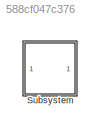
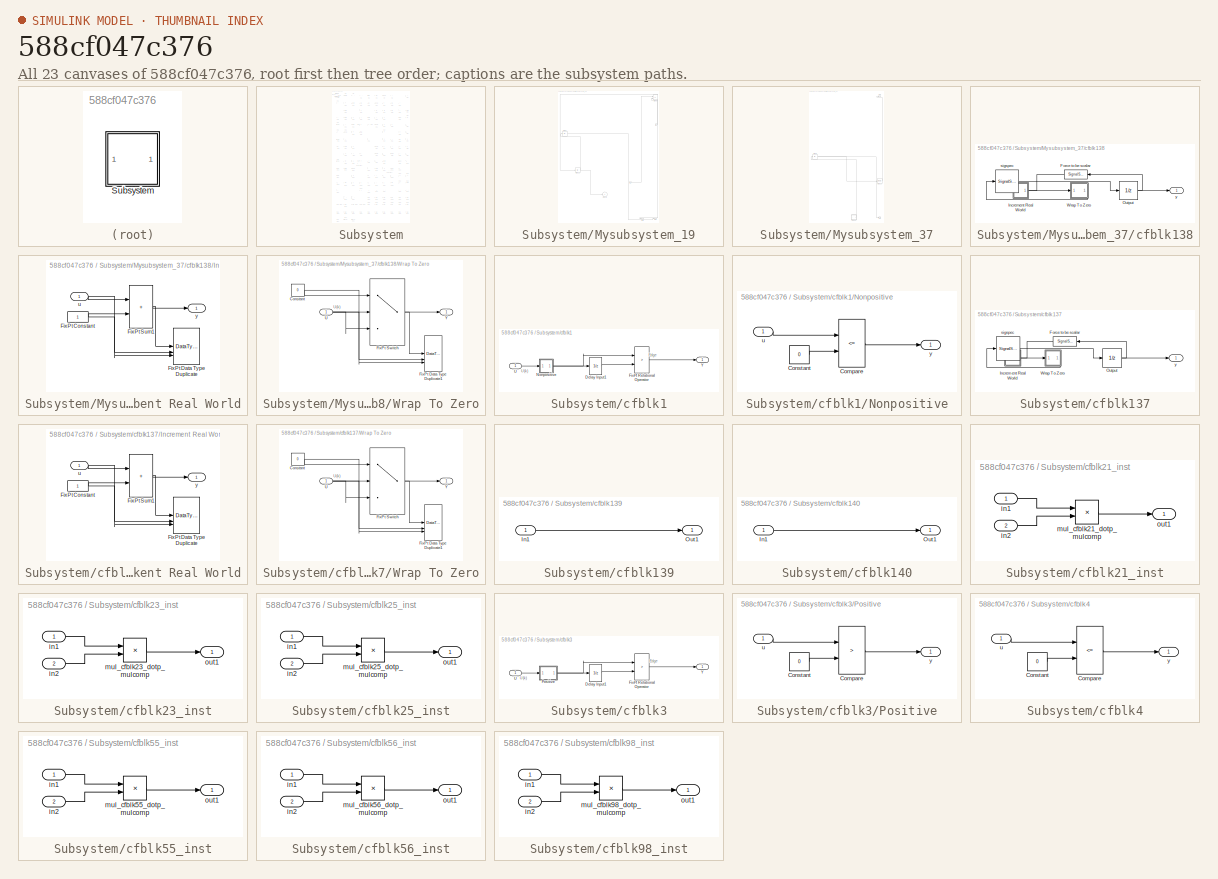
[diagram: thumbnail index - all 23 canvases of the model, root first then tree order]
MODEL slx_588cf047c376
KIND model
CONFIG AbsTol = auto
CONFIG EnableMultiTasking = off
CONFIG FixedStep = auto
CONFIG MaxStep = auto
CONFIG MinStep = auto
CONFIG RelTol = 1e-3
CONFIG SampleTimeConstraint = Unconstrained
CONFIG SolverName = VariableStepAuto
CONFIG StartTime = 0.0
CONFIG StopTime = 10.0
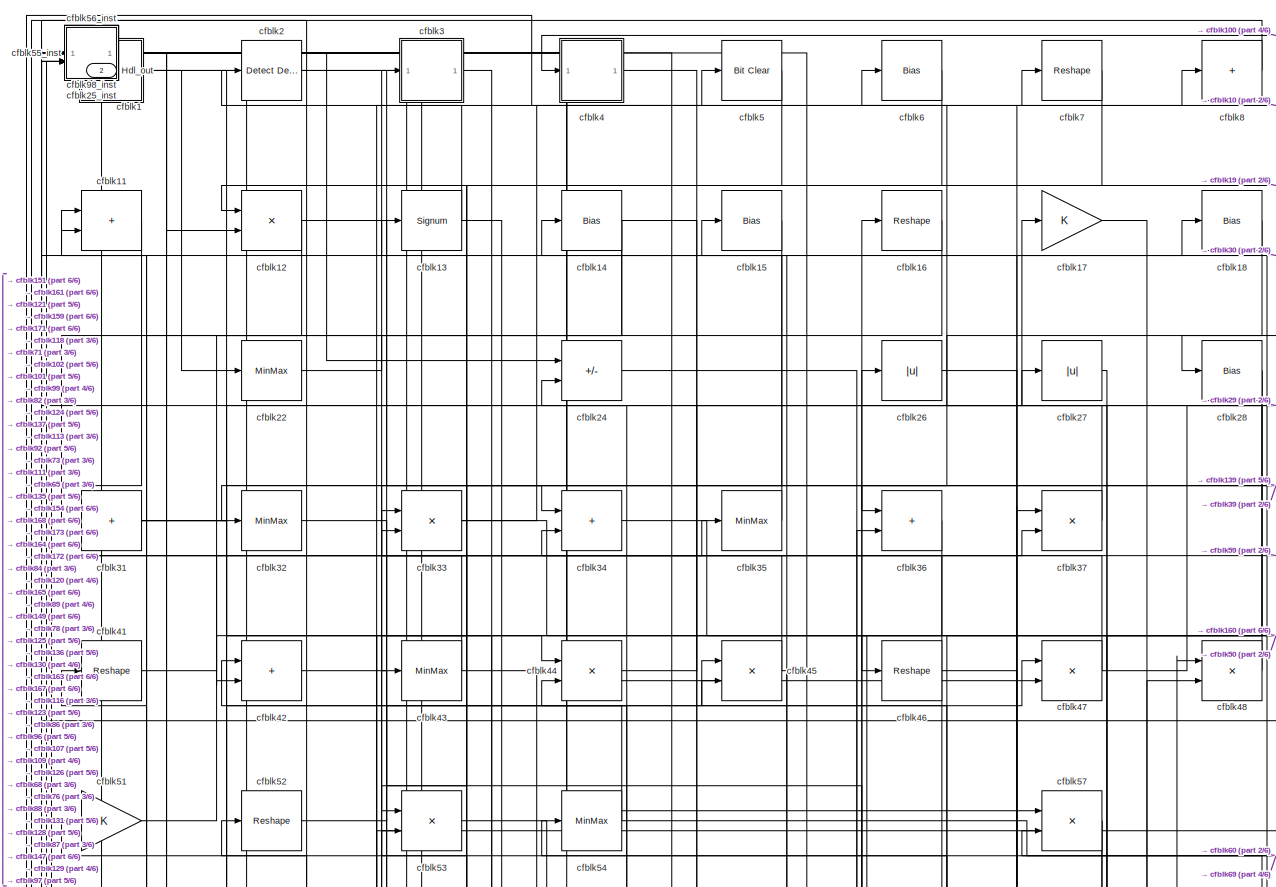
[diagram: Subsystem - part 1/6, full width, top band]
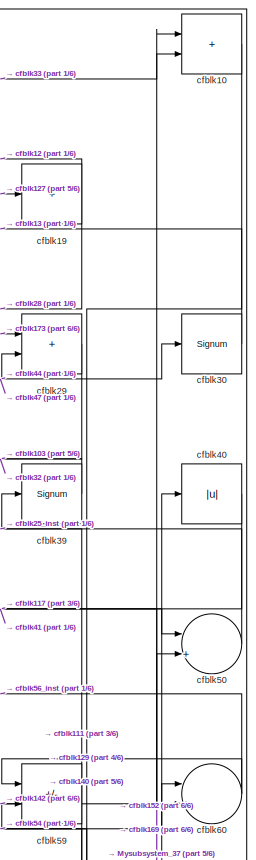
[diagram: Subsystem - part 2/6, top right region]
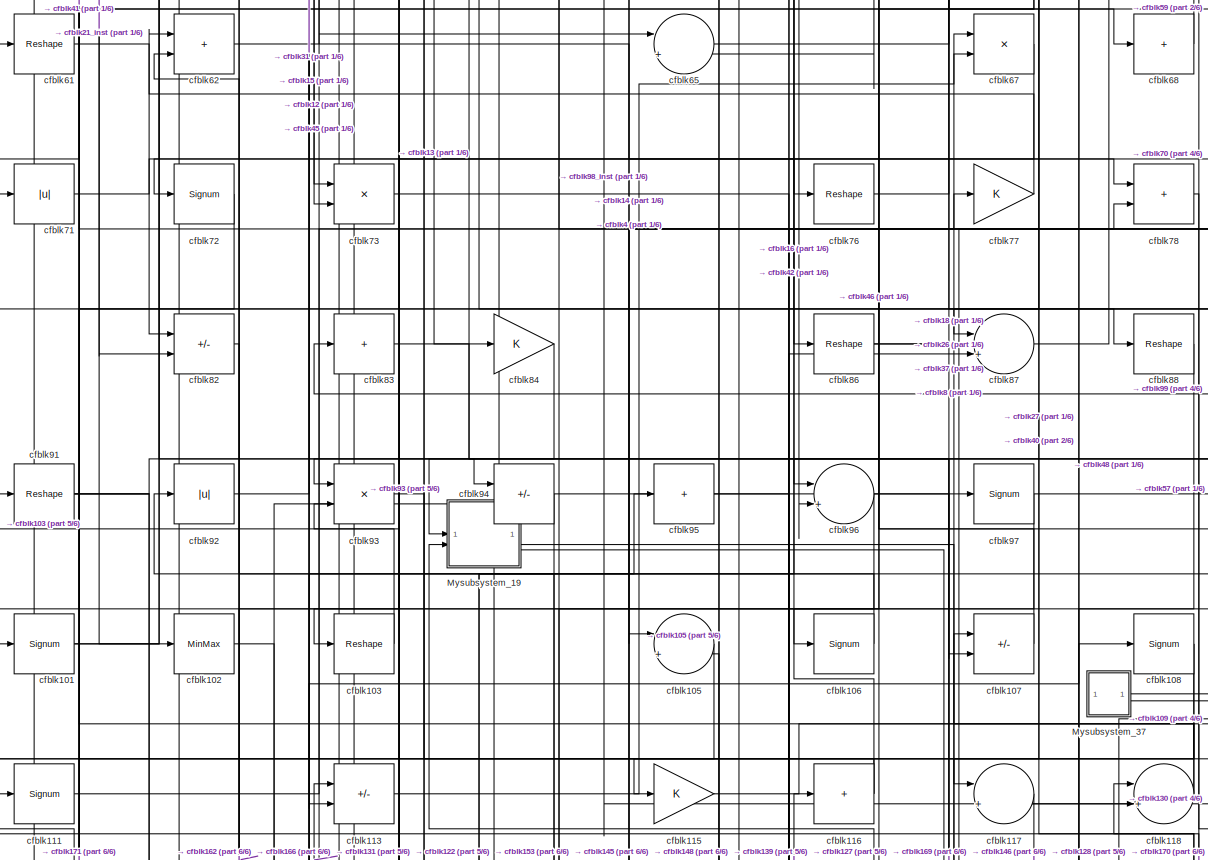
[diagram: Subsystem - part 3/6, full width, middle band]
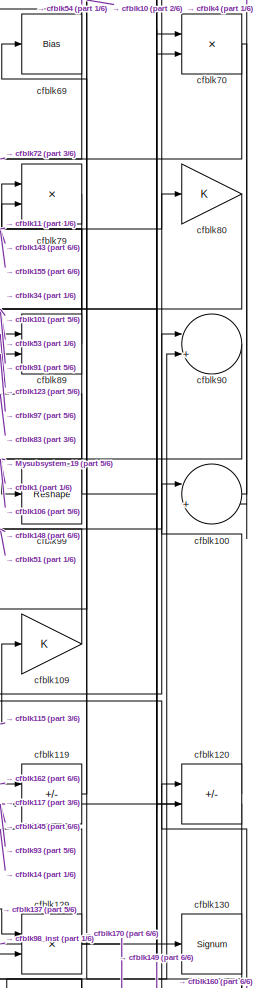
[diagram: Subsystem - part 4/6, middle right region]
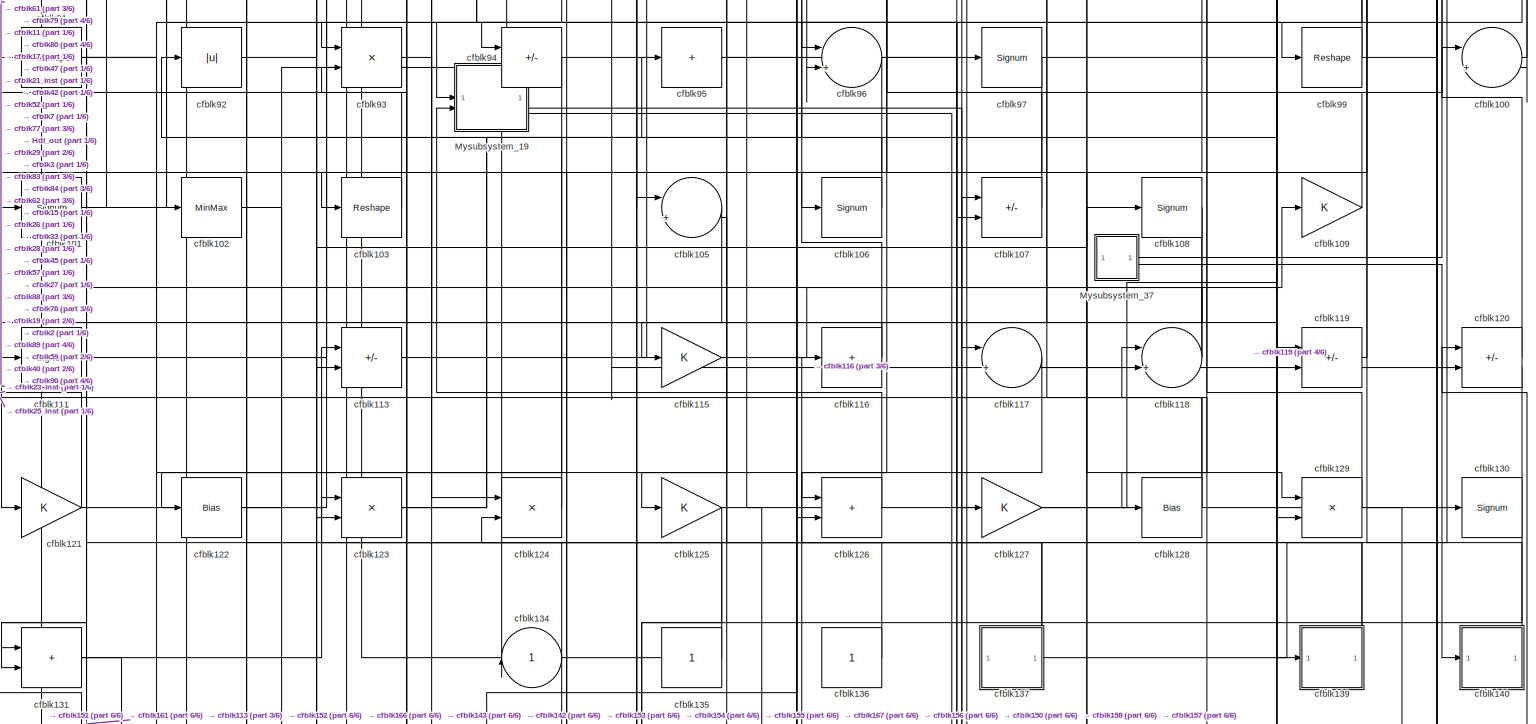
[diagram: Subsystem - part 5/6, full width, middle band]
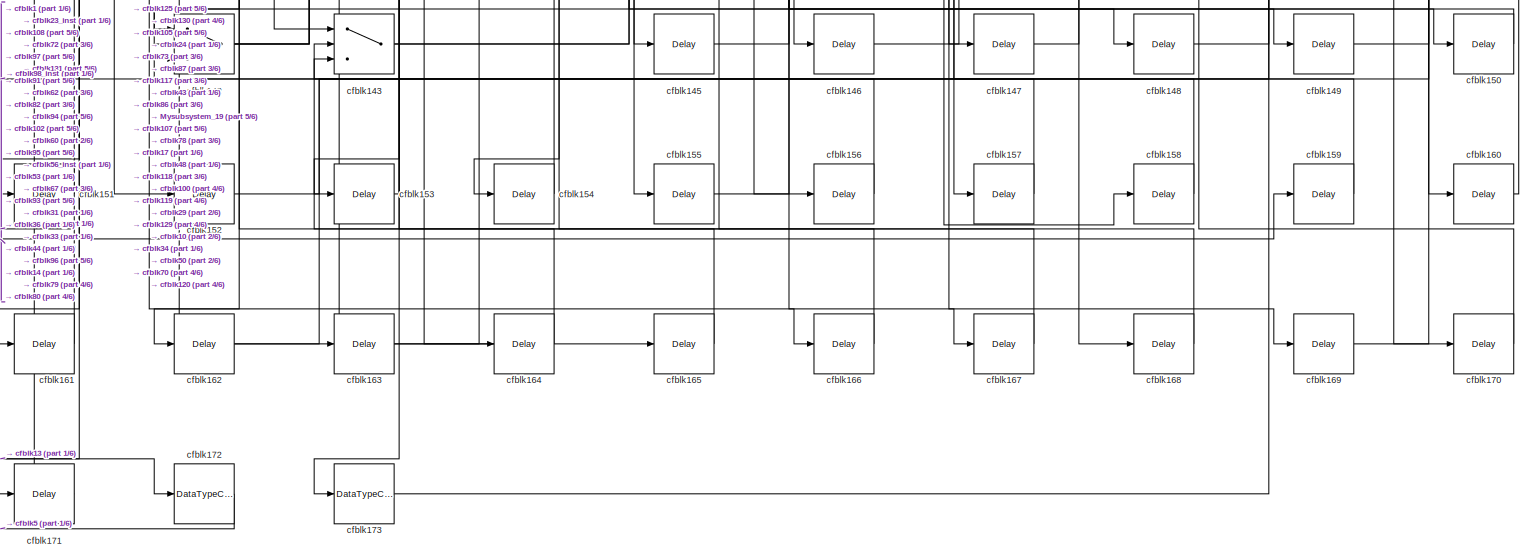
[diagram: Subsystem - part 6/6, full width, bottom band]
BLOCK [SubSystem] Subsystem
BLOCK [Outport] Subsystem/Hdl_out
  OutDataTypeStr = uint8
  Port = 2
  SampleTime = 1
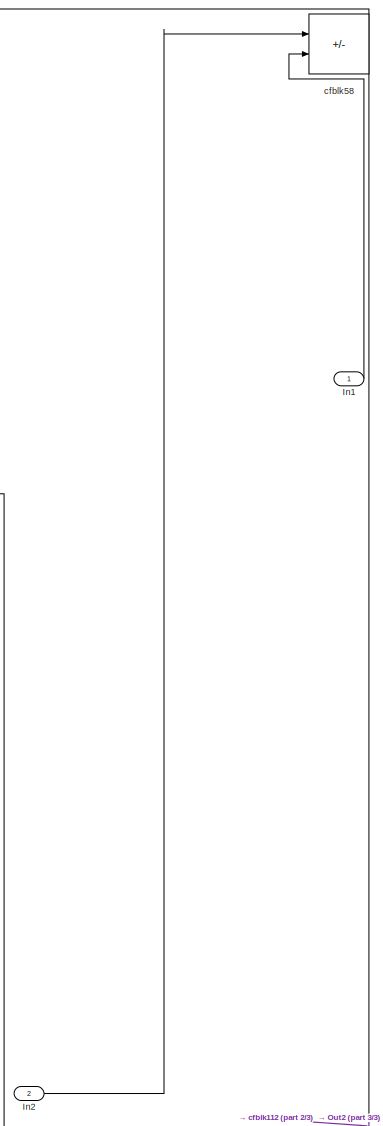
[diagram: Subsystem/Mysubsystem_19 - part 1/3, middle right region]
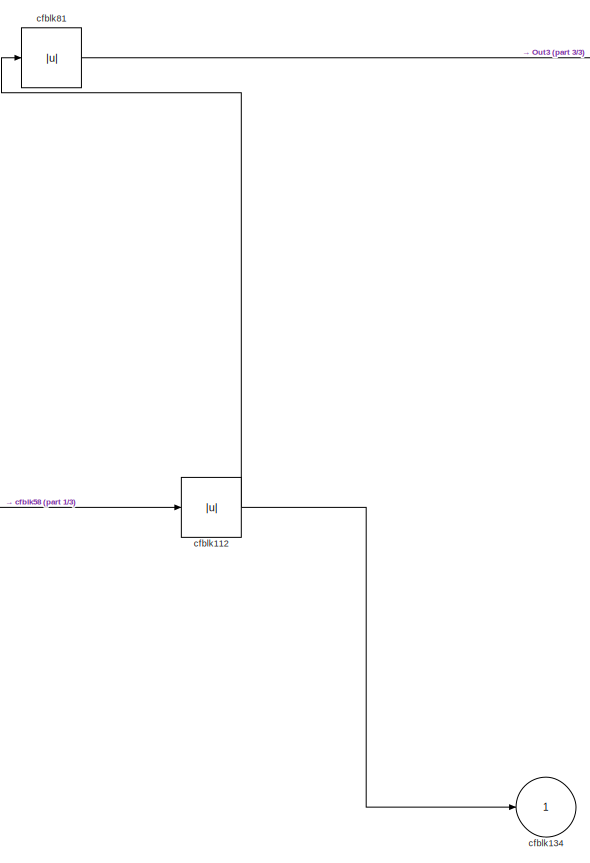
[diagram: Subsystem/Mysubsystem_19 - part 2/3, middle left region]
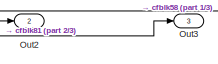
[diagram: Subsystem/Mysubsystem_19 - part 3/3, bottom right region]
BLOCK [SubSystem] Subsystem/Mysubsystem_19
BLOCK [Inport] Subsystem/Mysubsystem_19/In1
  OutDataTypeStr = uint8
  PortDimensions = 1
  SampleTime = 1
BLOCK [Inport] Subsystem/Mysubsystem_19/In2
  OutDataTypeStr = uint8
  Port = 2
  PortDimensions = 1
  SampleTime = 1
BLOCK [Outport] Subsystem/Mysubsystem_19/Out2
  Port = 2
  SampleTime = 1
BLOCK [Outport] Subsystem/Mysubsystem_19/Out3
  Port = 3
  SampleTime = 1
BLOCK [Abs] Subsystem/Mysubsystem_19/cfblk112
  SaturateOnIntegerOverflow = off
BLOCK [Outport] Subsystem/Mysubsystem_19/cfblk134
  SampleTime = 1
  VectorParamsAs1DForOutWhenUnconnected = off
BLOCK [Sum] Subsystem/Mysubsystem_19/cfblk58
  IconShape = rectangular
  Inputs = +-
BLOCK [Abs] Subsystem/Mysubsystem_19/cfblk81
  SaturateOnIntegerOverflow = off
BLOCK [SubSystem] Subsystem/Mysubsystem_37
BLOCK [Outport] Subsystem/Mysubsystem_37/Out1
  SampleTime = 1
BLOCK [Outport] Subsystem/Mysubsystem_37/Out2
  Port = 2
  SampleTime = 1
BLOCK [MinMax] Subsystem/Mysubsystem_37/cfblk110
BLOCK [SubSystem] Subsystem/Mysubsystem_37/cfblk138
BLOCK [SignalSpecification] Subsystem/Mysubsystem_37/cfblk138/Force to be scalar
  Dimensions = 1
  DisableCoverage = on
BLOCK [SubSystem] Subsystem/Mysubsystem_37/cfblk138/Increment Real World
BLOCK [Constant] Subsystem/Mysubsystem_37/cfblk138/Increment Real World/FixPt Constant
  DisableCoverage = on
  OutDataTypeStr = Inherit: Inherit via back propagation
  SampleTime = -1
BLOCK [DataTypeDuplicate] Subsystem/Mysubsystem_37/cfblk138/Increment Real World/FixPt Data Type Duplicate
  DisableCoverage = on
  NumInputPorts = 3
BLOCK [Sum] Subsystem/Mysubsystem_37/cfblk138/Increment Real World/FixPt Sum1
  IconShape = rectangular
  InputSameDT = on
  LockScale = on
  OutDataTypeStr = Inherit: Inherit via back propagation
BLOCK [Inport] Subsystem/Mysubsystem_37/cfblk138/Increment Real World/u
  OutDataTypeStr = uint8
  SampleTime = 1
BLOCK [Outport] Subsystem/Mysubsystem_37/cfblk138/Increment Real World/y
  SampleTime = 1
BLOCK [UnitDelay] Subsystem/Mysubsystem_37/cfblk138/Output
  HasFrameUpgradeWarning = on
  InitialCondition = 0.0
  SampleTime = tsamp
BLOCK [SubSystem] Subsystem/Mysubsystem_37/cfblk138/Wrap To Zero
BLOCK [Constant] Subsystem/Mysubsystem_37/cfblk138/Wrap To Zero/Constant
  DisableCoverage = on
  OutDataTypeStr = Inherit: Inherit via back propagation
  SampleTime = -1
  Value = 0
BLOCK [DataTypeDuplicate] Subsystem/Mysubsystem_37/cfblk138/Wrap To Zero/FixPt Data Type Duplicate1
  DisableCoverage = on
  NumInputPorts = 3
BLOCK [Switch] Subsystem/Mysubsystem_37/cfblk138/Wrap To Zero/FixPt Switch
  Criteria = u2 > Threshold
  InputSameDT = off
  OutDataTypeStr = Inherit: Inherit via back propagation
  SaturateOnIntegerOverflow = off
  Threshold = Threshold
  ZeroCross = off
BLOCK [Inport] Subsystem/Mysubsystem_37/cfblk138/Wrap To Zero/U
  OutDataTypeStr = uint8
  SampleTime = 1
BLOCK [Outport] Subsystem/Mysubsystem_37/cfblk138/Wrap To Zero/Y
  SampleTime = 1
BLOCK [SignalSpecification] Subsystem/Mysubsystem_37/cfblk138/sigspec
  Dimensions = 1
  OutDataTypeStr = uint8
BLOCK [Outport] Subsystem/Mysubsystem_37/cfblk138/y
  SampleTime = 1
BLOCK [Abs] Subsystem/Mysubsystem_37/cfblk85
  SaturateOnIntegerOverflow = off
BLOCK [SubSystem] Subsystem/cfblk1
BLOCK [UnitDelay] Subsystem/cfblk1/Delay Input1
  Description = Store in Global RAM
  DisableCoverage = on
  HasFrameUpgradeWarning = on
  InitialCondition = vinit
  SampleTime = -1
BLOCK [RelationalOperator] Subsystem/cfblk1/FixPt Relational Operator
  InputSameDT = off
  Operator = >
  OutDataTypeStr = fixdt(0, 8)
  ZeroCross = off
BLOCK [SubSystem] Subsystem/cfblk1/Nonpositive
BLOCK [RelationalOperator] Subsystem/cfblk1/Nonpositive/Compare
  Operator = <=
  OutDataTypeStr = boolean
  ZeroCross = off
BLOCK [Constant] Subsystem/cfblk1/Nonpositive/Constant
  DisableCoverage = on
  OutDataTypeStr = Inherit: Inherit via back propagation
  PreserveConstantTs = on
  SampleTime = -1
  Value = 0
BLOCK [Inport] Subsystem/cfblk1/Nonpositive/u
  OutDataTypeStr = uint8
  SampleTime = 1
BLOCK [Outport] Subsystem/cfblk1/Nonpositive/y
  SampleTime = 1
BLOCK [Inport] Subsystem/cfblk1/U
  OutDataTypeStr = uint8
  SampleTime = 1
BLOCK [Outport] Subsystem/cfblk1/Y
  SampleTime = 1
BLOCK [Sum] Subsystem/cfblk10
  IconShape = rectangular
  OutDataTypeStr = uint8
BLOCK [Sum] Subsystem/cfblk100
  Inputs = |++
  OutDataTypeStr = uint8
BLOCK [Signum] Subsystem/cfblk101
BLOCK [MinMax] Subsystem/cfblk102
  OutDataTypeStr = uint8
BLOCK [Reshape] Subsystem/cfblk103
BLOCK [Sum] Subsystem/cfblk105
  Inputs = |++
  OutDataTypeStr = uint8
BLOCK [Signum] Subsystem/cfblk106
BLOCK [Sum] Subsystem/cfblk107
  IconShape = rectangular
  Inputs = +-
  OutDataTypeStr = uint8
BLOCK [Signum] Subsystem/cfblk108
BLOCK [Gain] Subsystem/cfblk109
  OutDataTypeStr = uint8
BLOCK [Sum] Subsystem/cfblk11
  IconShape = rectangular
  OutDataTypeStr = uint8
BLOCK [Signum] Subsystem/cfblk111
BLOCK [Sum] Subsystem/cfblk113
  IconShape = rectangular
  Inputs = +-
  OutDataTypeStr = uint8
BLOCK [Gain] Subsystem/cfblk115
  OutDataTypeStr = uint8
BLOCK [Sum] Subsystem/cfblk116
  IconShape = rectangular
  Inputs = +
  OutDataTypeStr = uint8
BLOCK [Sum] Subsystem/cfblk117
  Inputs = |++
  OutDataTypeStr = uint8
BLOCK [Sum] Subsystem/cfblk118
  Inputs = |++
  OutDataTypeStr = uint8
BLOCK [Sum] Subsystem/cfblk119
  IconShape = rectangular
  Inputs = +-
  OutDataTypeStr = uint8
BLOCK [Product] Subsystem/cfblk12
  Inputs = */
  OutDataTypeStr = uint8
  RndMeth = Zero
  SaturateOnIntegerOverflow = on
BLOCK [Sum] Subsystem/cfblk120
  IconShape = rectangular
  Inputs = +-
  OutDataTypeStr = uint8
BLOCK [Gain] Subsystem/cfblk121
  OutDataTypeStr = uint8
BLOCK [Bias] Subsystem/cfblk122
  Bias = 0.0
  SaturateOnIntegerOverflow = off
BLOCK [Product] Subsystem/cfblk123
  Inputs = */
  OutDataTypeStr = uint8
  RndMeth = Zero
  SaturateOnIntegerOverflow = on
BLOCK [Product] Subsystem/cfblk124
  Inputs = */
  OutDataTypeStr = uint8
  RndMeth = Zero
  SaturateOnIntegerOverflow = on
BLOCK [Gain] Subsystem/cfblk125
  OutDataTypeStr = uint8
BLOCK [Sum] Subsystem/cfblk126
  IconShape = rectangular
  OutDataTypeStr = uint8
BLOCK [Gain] Subsystem/cfblk127
  OutDataTypeStr = uint8
BLOCK [Bias] Subsystem/cfblk128
  Bias = 0.0
  SaturateOnIntegerOverflow = off
BLOCK [Product] Subsystem/cfblk129
  Inputs = */
  OutDataTypeStr = uint8
  RndMeth = Zero
  SaturateOnIntegerOverflow = on
BLOCK [Signum] Subsystem/cfblk13
BLOCK [Signum] Subsystem/cfblk130
BLOCK [Sum] Subsystem/cfblk131
  IconShape = rectangular
  OutDataTypeStr = uint8
BLOCK [Outport] Subsystem/cfblk134
  OutDataTypeStr = uint8
  SampleTime = 1
  VectorParamsAs1DForOutWhenUnconnected = off
BLOCK [Constant] Subsystem/cfblk135
  OutDataTypeStr = uint8
  SampleTime = -1
BLOCK [Constant] Subsystem/cfblk136
  OutDataTypeStr = uint8
  SampleTime = -1
BLOCK [SubSystem] Subsystem/cfblk137
BLOCK [SignalSpecification] Subsystem/cfblk137/Force to be scalar
  Dimensions = 1
  DisableCoverage = on
BLOCK [SubSystem] Subsystem/cfblk137/Increment Real World
BLOCK [Constant] Subsystem/cfblk137/Increment Real World/FixPt Constant
  DisableCoverage = on
  OutDataTypeStr = Inherit: Inherit via back propagation
  SampleTime = -1
BLOCK [DataTypeDuplicate] Subsystem/cfblk137/Increment Real World/FixPt Data Type Duplicate
  DisableCoverage = on
  NumInputPorts = 3
BLOCK [Sum] Subsystem/cfblk137/Increment Real World/FixPt Sum1
  IconShape = rectangular
  InputSameDT = on
  LockScale = on
  OutDataTypeStr = Inherit: Inherit via back propagation
BLOCK [Inport] Subsystem/cfblk137/Increment Real World/u
  OutDataTypeStr = uint16
  SampleTime = 1
BLOCK [Outport] Subsystem/cfblk137/Increment Real World/y
  SampleTime = 1
BLOCK [UnitDelay] Subsystem/cfblk137/Output
  HasFrameUpgradeWarning = on
  InitialCondition = 0.0
  SampleTime = tsamp
BLOCK [SubSystem] Subsystem/cfblk137/Wrap To Zero
BLOCK [Constant] Subsystem/cfblk137/Wrap To Zero/Constant
  DisableCoverage = on
  OutDataTypeStr = Inherit: Inherit via back propagation
  SampleTime = -1
  Value = 0
BLOCK [DataTypeDuplicate] Subsystem/cfblk137/Wrap To Zero/FixPt Data Type Duplicate1
  DisableCoverage = on
  NumInputPorts = 3
BLOCK [Switch] Subsystem/cfblk137/Wrap To Zero/FixPt Switch
  Criteria = u2 > Threshold
  InputSameDT = off
  OutDataTypeStr = Inherit: Inherit via back propagation
  SaturateOnIntegerOverflow = off
  Threshold = Threshold
  ZeroCross = off
BLOCK [Inport] Subsystem/cfblk137/Wrap To Zero/U
  OutDataTypeStr = uint16
  SampleTime = 1
BLOCK [Outport] Subsystem/cfblk137/Wrap To Zero/Y
  SampleTime = 1
BLOCK [SignalSpecification] Subsystem/cfblk137/sigspec
  Dimensions = 1
  OutDataTypeStr = uint16
BLOCK [Outport] Subsystem/cfblk137/y
  SampleTime = 1
BLOCK [SubSystem] Subsystem/cfblk139
BLOCK [Inport] Subsystem/cfblk139/In1
  OutDataTypeStr = uint8
  PortDimensions = 1
  SampleTime = 1
BLOCK [Outport] Subsystem/cfblk139/Out1
  SampleTime = 1
BLOCK [Bias] Subsystem/cfblk14
  Bias = 0.0
  SaturateOnIntegerOverflow = off
BLOCK [SubSystem] Subsystem/cfblk140
BLOCK [Inport] Subsystem/cfblk140/In1
  OutDataTypeStr = uint8
  PortDimensions = 1
  SampleTime = 1
BLOCK [Outport] Subsystem/cfblk140/Out1
  SampleTime = 1
BLOCK [Switch] Subsystem/cfblk142
  InputSameDT = off
  OutDataTypeStr = uint8
  SaturateOnIntegerOverflow = off
BLOCK [Switch] Subsystem/cfblk143
  InputSameDT = off
  OutDataTypeStr = uint8
  SaturateOnIntegerOverflow = off
BLOCK [Delay] Subsystem/cfblk145
  InputPortMap = u0
  SampleTime = 1
BLOCK [Delay] Subsystem/cfblk146
  InputPortMap = u0
  SampleTime = 1
BLOCK [Delay] Subsystem/cfblk147
  InputPortMap = u0
  SampleTime = 1
BLOCK [Delay] Subsystem/cfblk148
  InputPortMap = u0
  SampleTime = 1
BLOCK [Delay] Subsystem/cfblk149
  InputPortMap = u0
  SampleTime = 1
BLOCK [Bias] Subsystem/cfblk15
  Bias = 0.0
  SaturateOnIntegerOverflow = off
BLOCK [Delay] Subsystem/cfblk150
  InputPortMap = u0
  SampleTime = 1
BLOCK [Delay] Subsystem/cfblk151
  InputPortMap = u0
  SampleTime = 1
BLOCK [Delay] Subsystem/cfblk152
  InputPortMap = u0
  SampleTime = 1
BLOCK [Delay] Subsystem/cfblk153
  InputPortMap = u0
  SampleTime = 1
BLOCK [Delay] Subsystem/cfblk154
  InputPortMap = u0
  SampleTime = 1
BLOCK [Delay] Subsystem/cfblk155
  InputPortMap = u0
  SampleTime = 1
BLOCK [Delay] Subsystem/cfblk156
  InputPortMap = u0
  SampleTime = 1
BLOCK [Delay] Subsystem/cfblk157
  InputPortMap = u0
  SampleTime = 1
BLOCK [Delay] Subsystem/cfblk158
  InputPortMap = u0
  SampleTime = 1
BLOCK [Delay] Subsystem/cfblk159
  InputPortMap = u0
  SampleTime = 1
BLOCK [Reshape] Subsystem/cfblk16
BLOCK [Delay] Subsystem/cfblk160
  InputPortMap = u0
  SampleTime = 1
BLOCK [Delay] Subsystem/cfblk161
  InputPortMap = u0
  SampleTime = 1
BLOCK [Delay] Subsystem/cfblk162
  InputPortMap = u0
  SampleTime = 1
BLOCK [Delay] Subsystem/cfblk163
  InputPortMap = u0
  SampleTime = 1
BLOCK [Delay] Subsystem/cfblk164
  InputPortMap = u0
  SampleTime = 1
BLOCK [Delay] Subsystem/cfblk165
  InputPortMap = u0
  SampleTime = 1
BLOCK [Delay] Subsystem/cfblk166
  InputPortMap = u0
  SampleTime = 1
BLOCK [Delay] Subsystem/cfblk167
  InputPortMap = u0
  SampleTime = 1
BLOCK [Delay] Subsystem/cfblk168
  InputPortMap = u0
  SampleTime = 1
BLOCK [Delay] Subsystem/cfblk169
  InputPortMap = u0
  SampleTime = 1
BLOCK [Gain] Subsystem/cfblk17
  OutDataTypeStr = uint8
BLOCK [Delay] Subsystem/cfblk170
  InputPortMap = u0
  SampleTime = 1
BLOCK [Delay] Subsystem/cfblk171
  InputPortMap = u0
  SampleTime = 1
BLOCK [DataTypeConversion] Subsystem/cfblk172
  OutDataTypeStr = uint8
  RndMeth = Floor
  SaturateOnIntegerOverflow = off
BLOCK [DataTypeConversion] Subsystem/cfblk173
  OutDataTypeStr = uint8
  RndMeth = Floor
  SaturateOnIntegerOverflow = off
BLOCK [Bias] Subsystem/cfblk18
  Bias = 0.0
  SaturateOnIntegerOverflow = off
BLOCK [Sum] Subsystem/cfblk19
  IconShape = rectangular
  Inputs = +
  OutDataTypeStr = uint8
BLOCK [Reference] Subsystem/cfblk2  REF=simulink/Logic and Bit
Operations/Detect
Decrease
  LibrarySourceBlock = hdlsllib/Logic and Bit\nOperations/Detect\nDecrease
  SourceBlock = simulink/Logic and Bit\nOperations/Detect\nDecrease
  SourceType = Detect Decrease
BLOCK [SubSystem] Subsystem/cfblk21_inst
BLOCK [Inport] Subsystem/cfblk21_inst/in1
  OutDataTypeStr = uint8
  SampleTime = 1
BLOCK [Inport] Subsystem/cfblk21_inst/in2
  OutDataTypeStr = uint8
  Port = 2
  SampleTime = 1
BLOCK [Product] Subsystem/cfblk21_inst/mul_cfblk21_dotp_mulcomp
  Inputs = **
  OutDataTypeStr = uint8
  SampleTime = 1
BLOCK [Outport] Subsystem/cfblk21_inst/out1
  OutDataTypeStr = uint8
  SampleTime = 1
BLOCK [MinMax] Subsystem/cfblk22
  OutDataTypeStr = uint8
BLOCK [SubSystem] Subsystem/cfblk23_inst
BLOCK [Inport] Subsystem/cfblk23_inst/in1
  OutDataTypeStr = uint8
  SampleTime = 1
BLOCK [Inport] Subsystem/cfblk23_inst/in2
  OutDataTypeStr = uint8
  Port = 2
  SampleTime = 1
BLOCK [Product] Subsystem/cfblk23_inst/mul_cfblk23_dotp_mulcomp
  Inputs = **
  OutDataTypeStr = uint8
  SampleTime = 1
BLOCK [Outport] Subsystem/cfblk23_inst/out1
  OutDataTypeStr = uint8
  SampleTime = 1
BLOCK [Sum] Subsystem/cfblk24
  IconShape = rectangular
  Inputs = +-
  OutDataTypeStr = uint8
BLOCK [SubSystem] Subsystem/cfblk25_inst
BLOCK [Inport] Subsystem/cfblk25_inst/in1
  OutDataTypeStr = uint8
  SampleTime = 1
BLOCK [Inport] Subsystem/cfblk25_inst/in2
  OutDataTypeStr = uint8
  Port = 2
  SampleTime = 1
BLOCK [Product] Subsystem/cfblk25_inst/mul_cfblk25_dotp_mulcomp
  Inputs = **
  OutDataTypeStr = uint8
  SampleTime = 1
BLOCK [Outport] Subsystem/cfblk25_inst/out1
  OutDataTypeStr = uint8
  SampleTime = 1
BLOCK [Abs] Subsystem/cfblk26
  OutDataTypeStr = uint8
  SaturateOnIntegerOverflow = off
BLOCK [Abs] Subsystem/cfblk27
  OutDataTypeStr = uint8
  SaturateOnIntegerOverflow = off
BLOCK [Bias] Subsystem/cfblk28
  Bias = 0.0
  SaturateOnIntegerOverflow = off
BLOCK [Sum] Subsystem/cfblk29
  IconShape = rectangular
  OutDataTypeStr = uint8
BLOCK [SubSystem] Subsystem/cfblk3
BLOCK [UnitDelay] Subsystem/cfblk3/Delay Input1
  Description = Store in Global RAM
  DisableCoverage = on
  HasFrameUpgradeWarning = on
  InitialCondition = vinit
  SampleTime = -1
BLOCK [RelationalOperator] Subsystem/cfblk3/FixPt Relational Operator
  InputSameDT = off
  Operator = >
  OutDataTypeStr = fixdt(0, 8)
  ZeroCross = off
BLOCK [SubSystem] Subsystem/cfblk3/Positive
BLOCK [RelationalOperator] Subsystem/cfblk3/Positive/Compare
  Operator = >
  OutDataTypeStr = boolean
  ZeroCross = off
BLOCK [Constant] Subsystem/cfblk3/Positive/Constant
  DisableCoverage = on
  OutDataTypeStr = Inherit: Inherit via back propagation
  PreserveConstantTs = on
  SampleTime = -1
  Value = 0
BLOCK [Inport] Subsystem/cfblk3/Positive/u
  OutDataTypeStr = uint8
  SampleTime = 1
BLOCK [Outport] Subsystem/cfblk3/Positive/y
  SampleTime = 1
BLOCK [Inport] Subsystem/cfblk3/U
  OutDataTypeStr = uint8
  SampleTime = 1
BLOCK [Outport] Subsystem/cfblk3/Y
  SampleTime = 1
BLOCK [Signum] Subsystem/cfblk30
BLOCK [Sum] Subsystem/cfblk31
  IconShape = rectangular
  Inputs = +
  OutDataTypeStr = uint8
BLOCK [MinMax] Subsystem/cfblk32
  OutDataTypeStr = uint8
BLOCK [Product] Subsystem/cfblk33
  Inputs = */
  OutDataTypeStr = uint8
  RndMeth = Zero
  SaturateOnIntegerOverflow = on
BLOCK [Sum] Subsystem/cfblk34
  IconShape = rectangular
  OutDataTypeStr = uint8
BLOCK [MinMax] Subsystem/cfblk35
  OutDataTypeStr = uint8
BLOCK [Sum] Subsystem/cfblk36
  IconShape = rectangular
  OutDataTypeStr = uint8
BLOCK [Product] Subsystem/cfblk37
  Inputs = */
  OutDataTypeStr = uint8
  RndMeth = Zero
  SaturateOnIntegerOverflow = on
BLOCK [Signum] Subsystem/cfblk39
BLOCK [SubSystem] Subsystem/cfblk4
BLOCK [RelationalOperator] Subsystem/cfblk4/Compare
  Operator = <=
  OutDataTypeStr = fixdt(0, 8)
BLOCK [Constant] Subsystem/cfblk4/Constant
  DisableCoverage = on
  OutDataTypeStr = Inherit: Inherit via back propagation
  PreserveConstantTs = on
  SampleTime = -1
  Value = 0
BLOCK [Inport] Subsystem/cfblk4/u
  OutDataTypeStr = uint8
  SampleTime = 1
BLOCK [Outport] Subsystem/cfblk4/y
  SampleTime = 1
BLOCK [Abs] Subsystem/cfblk40
  OutDataTypeStr = uint8
  SaturateOnIntegerOverflow = off
BLOCK [Reshape] Subsystem/cfblk41
BLOCK [Sum] Subsystem/cfblk42
  IconShape = rectangular
  OutDataTypeStr = uint8
BLOCK [MinMax] Subsystem/cfblk43
  OutDataTypeStr = uint8
BLOCK [Product] Subsystem/cfblk44
  Inputs = */
  OutDataTypeStr = uint8
  RndMeth = Zero
  SaturateOnIntegerOverflow = on
BLOCK [Product] Subsystem/cfblk45
  Inputs = */
  OutDataTypeStr = uint8
  RndMeth = Zero
  SaturateOnIntegerOverflow = on
BLOCK [Reshape] Subsystem/cfblk46
BLOCK [Product] Subsystem/cfblk47
  Inputs = */
  OutDataTypeStr = uint8
  RndMeth = Zero
  SaturateOnIntegerOverflow = on
BLOCK [Product] Subsystem/cfblk48
  Inputs = */
  OutDataTypeStr = uint8
  RndMeth = Zero
  SaturateOnIntegerOverflow = on
BLOCK [Reference] Subsystem/cfblk5  REF=simulink/Logic and Bit
Operations/Bit Clear
  LibrarySourceBlock = hdlsllib/Logic and Bit\nOperations/Bit Clear
  SourceBlock = simulink/Logic and Bit\nOperations/Bit Clear
  SourceType = Bit Clear
BLOCK [Sum] Subsystem/cfblk50
  Inputs = |++
  OutDataTypeStr = uint8
BLOCK [Gain] Subsystem/cfblk51
  OutDataTypeStr = uint8
BLOCK [Reshape] Subsystem/cfblk52
BLOCK [Product] Subsystem/cfblk53
  Inputs = */
  OutDataTypeStr = uint8
  RndMeth = Zero
  SaturateOnIntegerOverflow = on
BLOCK [MinMax] Subsystem/cfblk54
  OutDataTypeStr = uint8
BLOCK [SubSystem] Subsystem/cfblk55_inst
BLOCK [Inport] Subsystem/cfblk55_inst/in1
  OutDataTypeStr = uint8
  SampleTime = 1
BLOCK [Inport] Subsystem/cfblk55_inst/in2
  OutDataTypeStr = uint8
  Port = 2
  SampleTime = 1
BLOCK [Product] Subsystem/cfblk55_inst/mul_cfblk55_dotp_mulcomp
  Inputs = **
  OutDataTypeStr = uint8
  SampleTime = 1
BLOCK [Outport] Subsystem/cfblk55_inst/out1
  OutDataTypeStr = uint8
  SampleTime = 1
BLOCK [SubSystem] Subsystem/cfblk56_inst
BLOCK [Inport] Subsystem/cfblk56_inst/in1
  OutDataTypeStr = uint8
  SampleTime = 1
BLOCK [Inport] Subsystem/cfblk56_inst/in2
  OutDataTypeStr = uint8
  Port = 2
  SampleTime = 1
BLOCK [Product] Subsystem/cfblk56_inst/mul_cfblk56_dotp_mulcomp
  Inputs = **
  OutDataTypeStr = uint8
  SampleTime = 1
BLOCK [Outport] Subsystem/cfblk56_inst/out1
  OutDataTypeStr = uint8
  SampleTime = 1
BLOCK [Product] Subsystem/cfblk57
  Inputs = */
  OutDataTypeStr = uint8
  RndMeth = Zero
  SaturateOnIntegerOverflow = on
BLOCK [Sum] Subsystem/cfblk59
  IconShape = rectangular
  Inputs = +-
  OutDataTypeStr = uint8
BLOCK [Bias] Subsystem/cfblk6
  Bias = 0.0
  SaturateOnIntegerOverflow = off
BLOCK [Sum] Subsystem/cfblk60
  Inputs = |++
  OutDataTypeStr = uint8
BLOCK [Reshape] Subsystem/cfblk61
BLOCK [Sum] Subsystem/cfblk62
  IconShape = rectangular
  OutDataTypeStr = uint8
BLOCK [Sum] Subsystem/cfblk65
  Inputs = |++
  OutDataTypeStr = uint8
BLOCK [Product] Subsystem/cfblk67
  Inputs = */
  OutDataTypeStr = uint8
  RndMeth = Zero
  SaturateOnIntegerOverflow = on
BLOCK [Sum] Subsystem/cfblk68
  IconShape = rectangular
  Inputs = +
  OutDataTypeStr = uint8
BLOCK [Bias] Subsystem/cfblk69
  Bias = 0.0
  SaturateOnIntegerOverflow = off
BLOCK [Reshape] Subsystem/cfblk7
BLOCK [Product] Subsystem/cfblk70
  Inputs = */
  OutDataTypeStr = uint8
  RndMeth = Zero
  SaturateOnIntegerOverflow = on
BLOCK [Abs] Subsystem/cfblk71
  OutDataTypeStr = uint8
  SaturateOnIntegerOverflow = off
BLOCK [Signum] Subsystem/cfblk72
BLOCK [Product] Subsystem/cfblk73
  Inputs = */
  OutDataTypeStr = uint8
  RndMeth = Zero
  SaturateOnIntegerOverflow = on
BLOCK [Reshape] Subsystem/cfblk76
BLOCK [Gain] Subsystem/cfblk77
  OutDataTypeStr = uint8
BLOCK [Sum] Subsystem/cfblk78
  IconShape = rectangular
  OutDataTypeStr = uint8
BLOCK [Product] Subsystem/cfblk79
  Inputs = */
  OutDataTypeStr = uint8
  RndMeth = Zero
  SaturateOnIntegerOverflow = on
BLOCK [Sum] Subsystem/cfblk8
  IconShape = rectangular
  Inputs = +
  OutDataTypeStr = uint8
BLOCK [Gain] Subsystem/cfblk80
  OutDataTypeStr = uint8
BLOCK [Sum] Subsystem/cfblk82
  IconShape = rectangular
  Inputs = +-
  OutDataTypeStr = uint8
BLOCK [Sum] Subsystem/cfblk83
  IconShape = rectangular
  Inputs = +
  OutDataTypeStr = uint8
BLOCK [Gain] Subsystem/cfblk84
  OutDataTypeStr = uint8
BLOCK [Reshape] Subsystem/cfblk86
BLOCK [Sum] Subsystem/cfblk87
  Inputs = |++
  OutDataTypeStr = uint8
BLOCK [Reshape] Subsystem/cfblk88
BLOCK [Sum] Subsystem/cfblk89
  IconShape = rectangular
  OutDataTypeStr = uint8
BLOCK [Sum] Subsystem/cfblk90
  Inputs = |++
  OutDataTypeStr = uint8
BLOCK [Reshape] Subsystem/cfblk91
BLOCK [Abs] Subsystem/cfblk92
  OutDataTypeStr = uint8
  SaturateOnIntegerOverflow = off
BLOCK [Product] Subsystem/cfblk93
  Inputs = */
  OutDataTypeStr = uint8
  RndMeth = Zero
  SaturateOnIntegerOverflow = on
BLOCK [Sum] Subsystem/cfblk94
  IconShape = rectangular
  Inputs = +-
  OutDataTypeStr = uint8
BLOCK [Sum] Subsystem/cfblk95
  IconShape = rectangular
  Inputs = +
  OutDataTypeStr = uint8
BLOCK [Sum] Subsystem/cfblk96
  Inputs = |++
  OutDataTypeStr = uint8
BLOCK [Signum] Subsystem/cfblk97
BLOCK [SubSystem] Subsystem/cfblk98_inst
BLOCK [Inport] Subsystem/cfblk98_inst/in1
  OutDataTypeStr = uint8
  SampleTime = 1
BLOCK [Inport] Subsystem/cfblk98_inst/in2
  OutDataTypeStr = uint8
  Port = 2
  SampleTime = 1
BLOCK [Product] Subsystem/cfblk98_inst/mul_cfblk98_dotp_mulcomp
  Inputs = **
  OutDataTypeStr = uint8
  SampleTime = 1
BLOCK [Outport] Subsystem/cfblk98_inst/out1
  OutDataTypeStr = uint8
  SampleTime = 1
BLOCK [Reshape] Subsystem/cfblk99
ANNOTATION Subsystem/Mysubsystem_37/cfblk138/Wrap To Zero: U(k)
ANNOTATION Subsystem/cfblk1: Edge
ANNOTATION Subsystem/cfblk1: U(k)
ANNOTATION Subsystem/cfblk137/Wrap To Zero: U(k)
ANNOTATION Subsystem/cfblk3: Edge
ANNOTATION Subsystem/cfblk3: U(k)
LINE Subsystem/Mysubsystem_19/In1:1 -> Subsystem/Mysubsystem_19/cfblk58:2
LINE Subsystem/Mysubsystem_19/In2:1 -> Subsystem/Mysubsystem_19/cfblk58:1
NET Subsystem/Mysubsystem_19/cfblk112:1 -> Subsystem/Mysubsystem_19/cfblk134:1, Subsystem/Mysubsystem_19/cfblk81:1
NET Subsystem/Mysubsystem_19/cfblk58:1 -> Subsystem/Mysubsystem_19/Out2:1, Subsystem/Mysubsystem_19/cfblk112:1
LINE Subsystem/Mysubsystem_19/cfblk81:1 -> Subsystem/Mysubsystem_19/Out3:1
LINE Subsystem/Mysubsystem_19:1 -> Subsystem/cfblk134:1
LINE Subsystem/Mysubsystem_19:2 -> Subsystem/cfblk157:1
LINE Subsystem/Mysubsystem_19:3 -> Subsystem/cfblk158:1
LINE Subsystem/Mysubsystem_37/cfblk110:1 -> Subsystem/Mysubsystem_37/Out1:1
LINE Subsystem/Mysubsystem_37/cfblk138:1 -> Subsystem/Mysubsystem_37/cfblk85:1
NET Subsystem/Mysubsystem_37/cfblk85:1 -> Subsystem/Mysubsystem_37/Out2:1, Subsystem/Mysubsystem_37/cfblk110:1
LINE Subsystem/Mysubsystem_37:1 -> Subsystem/cfblk40:1
LINE Subsystem/Mysubsystem_37:2 -> Subsystem/cfblk140:1
LINE Subsystem/cfblk100:1 -> Subsystem/cfblk4:1
NET Subsystem/cfblk101:1 -> Subsystem/cfblk17:1, Subsystem/cfblk47:1
LINE Subsystem/cfblk102:1 -> Subsystem/cfblk143:1
LINE Subsystem/cfblk103:1 -> Subsystem/cfblk61:1
LINE Subsystem/cfblk105:1 -> Subsystem/cfblk121:1
LINE Subsystem/cfblk106:1 -> Subsystem/cfblk92:1
LINE Subsystem/cfblk107:1 -> Subsystem/cfblk45:1
NET Subsystem/cfblk108:1 -> Subsystem/cfblk131:2, Subsystem/cfblk151:1
LINE Subsystem/cfblk109:1 -> Subsystem/cfblk51:1
LINE Subsystem/cfblk10:1 -> Subsystem/cfblk129:1
LINE Subsystem/cfblk111:1 -> Subsystem/cfblk45:2
LINE Subsystem/cfblk113:1 -> Subsystem/cfblk67:1
LINE Subsystem/cfblk115:1 -> Subsystem/cfblk109:1
NET Subsystem/cfblk116:1 -> Subsystem/cfblk115:1, Subsystem/cfblk16:1
LINE Subsystem/cfblk117:1 -> Subsystem/cfblk146:1
NET Subsystem/cfblk118:1 -> Subsystem/cfblk41:1, Subsystem/cfblk67:2
LINE Subsystem/cfblk119:1 -> Subsystem/cfblk69:1
LINE Subsystem/cfblk11:1 -> Subsystem/cfblk159:1
LINE Subsystem/cfblk120:1 -> Subsystem/cfblk90:1
NET Subsystem/cfblk121:1 -> Subsystem/cfblk23_inst:2, Subsystem/cfblk94:2
LINE Subsystem/cfblk122:1 -> Subsystem/cfblk77:1
NET Subsystem/cfblk123:1 -> Subsystem/cfblk26:1, Subsystem/cfblk89:1
LINE Subsystem/cfblk124:1 -> Subsystem/cfblk52:1
NET Subsystem/cfblk125:1 -> Subsystem/cfblk155:1, Subsystem/cfblk156:1
LINE Subsystem/cfblk126:1 -> Subsystem/Mysubsystem_19:2
LINE Subsystem/cfblk127:1 -> Subsystem/cfblk19:1
NET Subsystem/cfblk128:1 -> Subsystem/cfblk25_inst:2, Subsystem/cfblk27:1
NET Subsystem/cfblk129:1 -> Subsystem/cfblk14:1, Subsystem/cfblk170:1
NET Subsystem/cfblk12:1 -> Subsystem/cfblk31:1, Subsystem/cfblk65:1
NET Subsystem/cfblk130:1 -> Subsystem/cfblk117:2, Subsystem/cfblk145:1
NET Subsystem/cfblk131:1 -> Subsystem/cfblk113:1, Subsystem/cfblk152:1
NET Subsystem/cfblk135:1 -> Subsystem/Hdl_out:1, Subsystem/cfblk124:2
LINE Subsystem/cfblk136:1 -> Subsystem/cfblk15:1
NET Subsystem/cfblk137:1 -> Subsystem/cfblk11:1, Subsystem/cfblk42:1, Subsystem/cfblk90:2
LINE Subsystem/cfblk139/In1:1 -> Subsystem/cfblk139/Out1:1
NET Subsystem/cfblk139:1 -> Subsystem/cfblk116:1, Subsystem/cfblk123:1
NET Subsystem/cfblk13:1 -> Subsystem/cfblk172:1, Subsystem/cfblk84:1
LINE Subsystem/cfblk140/In1:1 -> Subsystem/cfblk140/Out1:1
LINE Subsystem/cfblk140:1 -> Subsystem/cfblk59:2
NET Subsystem/cfblk142:1 -> Subsystem/cfblk108:1, Subsystem/cfblk60:2, Subsystem/cfblk95:1
NET Subsystem/cfblk143:1 -> Subsystem/cfblk79:1, Subsystem/cfblk80:1
LINE Subsystem/cfblk145:1 -> Subsystem/cfblk87:2
LINE Subsystem/cfblk146:1 -> Subsystem/cfblk78:2
LINE Subsystem/cfblk147:1 -> Subsystem/cfblk48:2
LINE Subsystem/cfblk148:1 -> Subsystem/cfblk100:1
LINE Subsystem/cfblk149:1 -> Subsystem/cfblk70:2
NET Subsystem/cfblk14:1 -> Subsystem/cfblk149:1, Subsystem/cfblk42:2, Subsystem/cfblk73:2
LINE Subsystem/cfblk150:1 -> Subsystem/cfblk142:2
LINE Subsystem/cfblk151:1 -> Subsystem/cfblk23_inst:1
LINE Subsystem/cfblk152:1 -> Subsystem/cfblk10:2
LINE Subsystem/cfblk153:1 -> Subsystem/cfblk93:2
LINE Subsystem/cfblk154:1 -> Subsystem/cfblk33:1
LINE Subsystem/cfblk155:1 -> Subsystem/cfblk79:2
LINE Subsystem/cfblk156:1 -> Subsystem/cfblk143:2
LINE Subsystem/cfblk157:1 -> Subsystem/cfblk142:3
LINE Subsystem/cfblk158:1 -> Subsystem/cfblk107:1
LINE Subsystem/cfblk159:1 -> Subsystem/cfblk98_inst:2
LINE Subsystem/cfblk15:1 -> Subsystem/cfblk73:1
LINE Subsystem/cfblk160:1 -> Subsystem/cfblk120:1
LINE Subsystem/cfblk161:1 -> Subsystem/cfblk21_inst:1
LINE Subsystem/cfblk162:1 -> Subsystem/cfblk119:1
LINE Subsystem/cfblk163:1 -> Subsystem/cfblk36:2
LINE Subsystem/cfblk164:1 -> Subsystem/cfblk143:3
LINE Subsystem/cfblk165:1 -> Subsystem/cfblk44:2
LINE Subsystem/cfblk166:1 -> Subsystem/cfblk62:2
LINE Subsystem/cfblk167:1 -> Subsystem/cfblk105:2
LINE Subsystem/cfblk168:1 -> Subsystem/cfblk53:2
LINE Subsystem/cfblk169:1 -> Subsystem/cfblk50:2
LINE Subsystem/cfblk16:1 -> Subsystem/cfblk71:1
LINE Subsystem/cfblk170:1 -> Subsystem/cfblk118:1
LINE Subsystem/cfblk171:1 -> Subsystem/cfblk1:1
LINE Subsystem/cfblk172:1 -> Subsystem/cfblk5:1
LINE Subsystem/cfblk173:1 -> Subsystem/cfblk29:1
LINE Subsystem/cfblk17:1 -> Subsystem/cfblk168:1
LINE Subsystem/cfblk18:1 -> Subsystem/cfblk36:1
NET Subsystem/cfblk19:1 -> Subsystem/cfblk12:1, Subsystem/cfblk28:1
NET Subsystem/cfblk1:1 -> Subsystem/cfblk22:1, Subsystem/cfblk99:1
LINE Subsystem/cfblk21_inst/in1:1 -> Subsystem/cfblk21_inst/mul_cfblk21_dotp_mulcomp:1
LINE Subsystem/cfblk21_inst/in2:1 -> Subsystem/cfblk21_inst/mul_cfblk21_dotp_mulcomp:2
LINE Subsystem/cfblk21_inst/mul_cfblk21_dotp_mulcomp:1 -> Subsystem/cfblk21_inst/out1:1
NET Subsystem/cfblk21_inst:1 -> Subsystem/cfblk163:1, Subsystem/cfblk82:2, Subsystem/cfblk97:1
LINE Subsystem/cfblk22:1 -> Subsystem/cfblk3:1
LINE Subsystem/cfblk23_inst/in1:1 -> Subsystem/cfblk23_inst/mul_cfblk23_dotp_mulcomp:1
LINE Subsystem/cfblk23_inst/in2:1 -> Subsystem/cfblk23_inst/mul_cfblk23_dotp_mulcomp:2
LINE Subsystem/cfblk23_inst/mul_cfblk23_dotp_mulcomp:1 -> Subsystem/cfblk23_inst/out1:1
NET Subsystem/cfblk23_inst:1 -> Subsystem/cfblk102:1, Subsystem/cfblk47:2
LINE Subsystem/cfblk24:1 -> Subsystem/cfblk167:1
LINE Subsystem/cfblk25_inst/in1:1 -> Subsystem/cfblk25_inst/mul_cfblk25_dotp_mulcomp:1
LINE Subsystem/cfblk25_inst/in2:1 -> Subsystem/cfblk25_inst/mul_cfblk25_dotp_mulcomp:2
LINE Subsystem/cfblk25_inst/mul_cfblk25_dotp_mulcomp:1 -> Subsystem/cfblk25_inst/out1:1
NET Subsystem/cfblk25_inst:1 -> Subsystem/cfblk12:2, Subsystem/cfblk57:1
LINE Subsystem/cfblk26:1 -> Subsystem/cfblk68:1
LINE Subsystem/cfblk27:1 -> Subsystem/cfblk87:1
NET Subsystem/cfblk28:1 -> Subsystem/cfblk123:2, Subsystem/cfblk126:1
LINE Subsystem/cfblk29:1 -> Subsystem/cfblk103:1
LINE Subsystem/cfblk2:1 -> Subsystem/cfblk139:1
LINE Subsystem/cfblk30:1 -> Subsystem/cfblk13:1
NET Subsystem/cfblk31:1 -> Subsystem/cfblk113:2, Subsystem/cfblk164:1, Subsystem/cfblk34:1
LINE Subsystem/cfblk32:1 -> Subsystem/cfblk44:1
NET Subsystem/cfblk33:1 -> Subsystem/cfblk10:1, Subsystem/cfblk96:2
LINE Subsystem/cfblk34:1 -> Subsystem/cfblk160:1
LINE Subsystem/cfblk35:1 -> Subsystem/cfblk55_inst:1
LINE Subsystem/cfblk36:1 -> Subsystem/cfblk46:1
LINE Subsystem/cfblk37:1 -> Subsystem/cfblk6:1
LINE Subsystem/cfblk39:1 -> Subsystem/cfblk32:1
LINE Subsystem/cfblk3:1 -> Subsystem/cfblk124:1
LINE Subsystem/cfblk40:1 -> Subsystem/cfblk117:1
LINE Subsystem/cfblk41:1 -> Subsystem/cfblk50:1
LINE Subsystem/cfblk42:1 -> Subsystem/cfblk86:1
NET Subsystem/cfblk43:1 -> Subsystem/cfblk147:1, Subsystem/cfblk33:2
LINE Subsystem/cfblk44:1 -> Subsystem/cfblk30:1
NET Subsystem/cfblk45:1 -> Subsystem/cfblk125:1, Subsystem/cfblk21_inst:2
NET Subsystem/cfblk46:1 -> Subsystem/cfblk24:2, Subsystem/cfblk65:2, Subsystem/cfblk88:1
NET Subsystem/cfblk47:1 -> Subsystem/cfblk29:2, Subsystem/cfblk55_inst:2
LINE Subsystem/cfblk48:1 -> Subsystem/cfblk98_inst:1
LINE Subsystem/cfblk4:1 -> Subsystem/cfblk78:1
LINE Subsystem/cfblk50:1 -> Subsystem/cfblk39:1
LINE Subsystem/cfblk51:1 -> Subsystem/cfblk37:2
LINE Subsystem/cfblk52:1 -> Subsystem/cfblk35:1
LINE Subsystem/cfblk53:1 -> Subsystem/cfblk120:2
NET Subsystem/cfblk54:1 -> Subsystem/cfblk2:1, Subsystem/cfblk60:1
LINE Subsystem/cfblk55_inst/in1:1 -> Subsystem/cfblk55_inst/mul_cfblk55_dotp_mulcomp:1
LINE Subsystem/cfblk55_inst/in2:1 -> Subsystem/cfblk55_inst/mul_cfblk55_dotp_mulcomp:2
LINE Subsystem/cfblk55_inst/mul_cfblk55_dotp_mulcomp:1 -> Subsystem/cfblk55_inst/out1:1
LINE Subsystem/cfblk55_inst:1 -> Subsystem/cfblk24:1
LINE Subsystem/cfblk56_inst/in1:1 -> Subsystem/cfblk56_inst/mul_cfblk56_dotp_mulcomp:1
LINE Subsystem/cfblk56_inst/in2:1 -> Subsystem/cfblk56_inst/mul_cfblk56_dotp_mulcomp:2
LINE Subsystem/cfblk56_inst/mul_cfblk56_dotp_mulcomp:1 -> Subsystem/cfblk56_inst/out1:1
LINE Subsystem/cfblk56_inst:1 -> Subsystem/cfblk165:1
NET Subsystem/cfblk57:1 -> Subsystem/cfblk131:1, Subsystem/cfblk96:1
NET Subsystem/cfblk59:1 -> Subsystem/cfblk111:1, Subsystem/cfblk25_inst:1
LINE Subsystem/cfblk5:1 -> Subsystem/cfblk173:1
NET Subsystem/cfblk60:1 -> Subsystem/cfblk56_inst:2, Subsystem/cfblk59:1
LINE Subsystem/cfblk61:1 -> Subsystem/cfblk82:1
LINE Subsystem/cfblk62:1 -> Subsystem/cfblk105:1
LINE Subsystem/cfblk65:1 -> Subsystem/cfblk8:1
LINE Subsystem/cfblk67:1 -> Subsystem/cfblk153:1
LINE Subsystem/cfblk68:1 -> Subsystem/cfblk57:2
NET Subsystem/cfblk69:1 -> Subsystem/cfblk129:2, Subsystem/cfblk54:1
LINE Subsystem/cfblk6:1 -> Subsystem/cfblk53:1
NET Subsystem/cfblk70:1 -> Subsystem/cfblk100:2, Subsystem/cfblk72:1
LINE Subsystem/cfblk71:1 -> Subsystem/cfblk76:1
LINE Subsystem/cfblk72:1 -> Subsystem/cfblk171:1
LINE Subsystem/cfblk73:1 -> Subsystem/cfblk148:1
LINE Subsystem/cfblk76:1 -> Subsystem/cfblk37:1
LINE Subsystem/cfblk77:1 -> Subsystem/cfblk62:1
LINE Subsystem/cfblk78:1 -> Subsystem/cfblk128:1
LINE Subsystem/cfblk79:1 -> Subsystem/cfblk91:1
LINE Subsystem/cfblk7:1 -> Subsystem/cfblk43:1
LINE Subsystem/cfblk80:1 -> Subsystem/cfblk101:1
LINE Subsystem/cfblk82:1 -> Subsystem/cfblk162:1
LINE Subsystem/cfblk83:1 -> Subsystem/cfblk127:1
LINE Subsystem/cfblk84:1 -> Subsystem/cfblk93:1
NET Subsystem/cfblk86:1 -> Subsystem/cfblk169:1, Subsystem/cfblk18:1
LINE Subsystem/cfblk87:1 -> Subsystem/cfblk48:1
LINE Subsystem/cfblk88:1 -> Subsystem/cfblk122:1
NET Subsystem/cfblk89:1 -> Subsystem/Mysubsystem_19:1, Subsystem/cfblk11:2, Subsystem/cfblk34:2
LINE Subsystem/cfblk8:1 -> Subsystem/cfblk56_inst:1
LINE Subsystem/cfblk90:1 -> Subsystem/cfblk106:1
NET Subsystem/cfblk91:1 -> Subsystem/cfblk126:2, Subsystem/cfblk166:1, Subsystem/cfblk94:1
LINE Subsystem/cfblk92:1 -> Subsystem/cfblk7:1
LINE Subsystem/cfblk93:1 -> Subsystem/cfblk119:2
LINE Subsystem/cfblk94:1 -> Subsystem/cfblk142:1
LINE Subsystem/cfblk95:1 -> Subsystem/cfblk150:1
NET Subsystem/cfblk96:1 -> Subsystem/cfblk107:2, Subsystem/cfblk154:1
NET Subsystem/cfblk97:1 -> Subsystem/cfblk161:1, Subsystem/cfblk89:2
LINE Subsystem/cfblk98_inst/in1:1 -> Subsystem/cfblk98_inst/mul_cfblk98_dotp_mulcomp:1
LINE Subsystem/cfblk98_inst/in2:1 -> Subsystem/cfblk98_inst/mul_cfblk98_dotp_mulcomp:2
LINE Subsystem/cfblk98_inst/mul_cfblk98_dotp_mulcomp:1 -> Subsystem/cfblk98_inst/out1:1
NET Subsystem/cfblk98_inst:1 -> Subsystem/cfblk118:2, Subsystem/cfblk130:1
NET Subsystem/cfblk99:1 -> Subsystem/cfblk70:1, Subsystem/cfblk83:1
note: NET lines group one-source signal fan-out (src -> all destinations, sorted); 1:1 wires keep LINE
